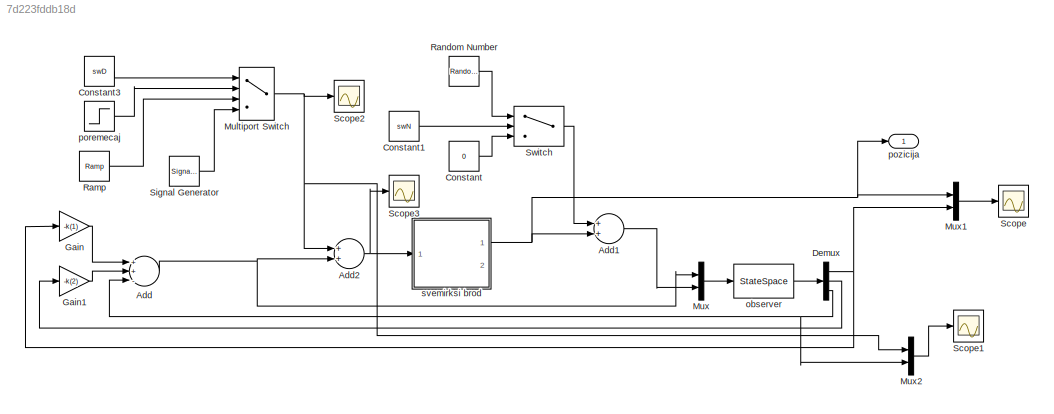
MODEL slx_7d223fddb18d
KIND model
CONFIG AbsTol = auto
CONFIG EnableMultiTasking = on
CONFIG FixedStep = 0.001
CONFIG MaxStep = auto
CONFIG MinStep = auto
CONFIG RelTol = 1e-3
CONFIG SampleTimeConstraint = Unconstrained
CONFIG Solver = VariableStepAuto
CONFIG SolverName = VariableStepAuto
CONFIG StartTime = 0.0
CONFIG StopTime = 30.0
BLOCK [Sum] Add
  InputSameDT = off
  Inputs = ++-
  OutDataTypeStr = Inherit: Inherit via internal rule
  Ports = [3, 1]
  SaturateOnIntegerOverflow = off
BLOCK [Sum] Add1
  InputSameDT = off
  OutDataTypeStr = Inherit: Inherit via internal rule
  Ports = [2, 1]
  SaturateOnIntegerOverflow = off
BLOCK [Sum] Add2
  InputSameDT = off
  OutDataTypeStr = Inherit: Inherit via internal rule
  Ports = [2, 1]
  SaturateOnIntegerOverflow = off
BLOCK [Constant] Constant
  Value = 0
BLOCK [Constant] Constant1
  Value = swN
BLOCK [Constant] Constant3
  Value = swD
BLOCK [Demux] Demux
  DisplayOption = bar
  Outputs = 3
  Ports = [1, 3]
BLOCK [Gain] Gain
  Gain = -k(1)
  OutDataTypeStr = Inherit: Inherit via internal rule
  ParamDataTypeStr = Inherit: Inherit via internal rule
  SaturateOnIntegerOverflow = off
BLOCK [Gain] Gain1
  Gain = -k(2)
  OutDataTypeStr = Inherit: Inherit via internal rule
  ParamDataTypeStr = Inherit: Inherit via internal rule
  SaturateOnIntegerOverflow = off
BLOCK [MultiPortSwitch] Multiport Switch
  InputSameDT = off
  Ports = [4, 1]
  SaturateOnIntegerOverflow = off
BLOCK [Mux] Mux
  DisplayOption = bar
  Inputs = 2
  Ports = [2, 1]
BLOCK [Mux] Mux1
  DisplayOption = bar
  Inputs = 2
  Ports = [2, 1]
BLOCK [Mux] Mux2
  DisplayOption = bar
  Inputs = 2
  Ports = [2, 1]
BLOCK [Reference] Ramp  REF=simulink/Sources/Ramp
  Ports = [0, 1]
  SourceBlock = simulink/Sources/Ramp
  SourceProductBaseCode = SL
  SourceProductName = Simulink
  SourceType = Ramp
BLOCK [RandomNumber] Random Number
  Variance = 0.01
BLOCK [Scope] Scope
  Floating = off
  NumInputPorts = 1
  Ports = [1]
  ScopeSpecificationString = Simulink.scopes.TimeScopeBlockCfg('CurrentConfiguration', extmgr.ConfigurationSet(extmgr.Configuration('Core','General UI',true),extmgr.Configuration('Core','Source UI',true),extmgr.Configuration('Sources','WiredSimulink',true),extmgr.Configuration('Visuals','Time Domain',true,'SerializedDisplays',{struct('MinYLimReal','-0.00025','MaxYLimReal','0.00037','YLabelReal','','MinYLimMag','0.00000','MaxY...<+1375ch>
BLOCK [Scope] Scope1
  Floating = off
  NumInputPorts = 1
  Ports = [1]
  ScopeSpecificationString = Simulink.scopes.TimeScopeBlockCfg('CurrentConfiguration', extmgr.ConfigurationSet(extmgr.Configuration('Core','General UI',true),extmgr.Configuration('Core','Source UI',true),extmgr.Configuration('Sources','WiredSimulink',true,'DataLoggingVariableName','ScopeData1'),extmgr.Configuration('Visuals','Time Domain',true,'SerializedDisplays',{struct('MinYLimReal','-2.51863','MaxYLimReal','2.51864','YLab...<+1414ch>
BLOCK [Scope] Scope2
  Floating = off
  NumInputPorts = 1
  Ports = [1]
  ScopeSpecificationString = Simulink.scopes.TimeScopeBlockCfg('CurrentConfiguration', extmgr.ConfigurationSet(extmgr.Configuration('Core','General UI',true),extmgr.Configuration('Core','Source UI',true),extmgr.Configuration('Sources','WiredSimulink',true,'DataLoggingVariableName','ScopeData2'),extmgr.Configuration('Visuals','Time Domain',true,'SerializedDisplays',{struct('MinYLimReal','-2.5','MaxYLimReal','2.5','YLabelReal',...<+1380ch>
BLOCK [Scope] Scope3
  Floating = off
  NumInputPorts = 1
  Ports = [1]
  ScopeSpecificationString = Simulink.scopes.TimeScopeBlockCfg('CurrentConfiguration', extmgr.ConfigurationSet(extmgr.Configuration('Core','General UI',true),extmgr.Configuration('Core','Source UI',true),extmgr.Configuration('Sources','WiredSimulink',true,'DataLoggingVariableName','ScopeData3'),extmgr.Configuration('Visuals','Time Domain',true,'SerializedDisplays',{struct('MinYLimReal','-0.04033','MaxYLimReal','0.0639','YLabe...<+1388ch>
BLOCK [SignalGenerator] Signal Generator
  Amplitude = 2
  Frequency = omega
  Ports = [0, 1]
  Units = rad/sec
BLOCK [Switch] Switch
  Criteria = u2 > Threshold
  InputSameDT = off
  SaturateOnIntegerOverflow = off
  Threshold = 0.5
BLOCK [StateSpace] observer
  A = Ao
  B = Bo
  C = Co
  D = Do
  InitialCondition = 0
  Ports = [1, 1]
BLOCK [Step] poremecaj
  After = 3
  SampleTime = 0
BLOCK [Outport] pozicija
  IconDisplay = Port number
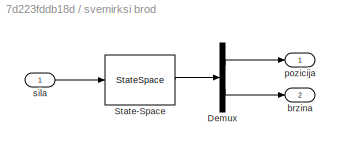
BLOCK [SubSystem] svemirksi brod
  Ports = [1, 2]
  RequestExecContextInheritance = off
BLOCK [Demux] svemirksi brod/Demux
  DisplayOption = bar
  Outputs = 2
  Ports = [1, 2]
BLOCK [StateSpace] svemirksi brod/State-Space
  A = [0 1;0 -b/m]
  B = [0;1/m]
  C = [1 0; 0 1]
  D = [0;0]
  InitialCondition = [0;0]
  Ports = [1, 1]
BLOCK [Outport] svemirksi brod/brzina
  IconDisplay = Port number
  Port = 2
BLOCK [Outport] svemirksi brod/pozicija
  IconDisplay = Port number
BLOCK [Inport] svemirksi brod/sila
  IconDisplay = Port number
LINE Add1:1 -> Mux:2
NET Add2:1 -> Scope3:1, svemirksi brod:1
NET Add:1 -> Add2:2, Mux:1
LINE Constant1:1 -> Switch:2
LINE Constant3:1 -> Multiport Switch:1
LINE Constant:1 -> Switch:3
NET Demux:1 -> Gain:1, Mux1:2
LINE Demux:2 -> Gain1:1
NET Demux:3 -> Add:3, Mux2:2
LINE Gain1:1 -> Add:2
LINE Gain:1 -> Add:1
NET Multiport Switch:1 -> Add2:1, Mux2:1, Scope2:1
LINE Mux1:1 -> Scope:1
LINE Mux2:1 -> Scope1:1
LINE Mux:1 -> observer:1
LINE Ramp:1 -> Multiport Switch:3
LINE Random Number:1 -> Switch:1
LINE Signal Generator:1 -> Multiport Switch:4
LINE Switch:1 -> Add1:1
LINE observer:1 -> Demux:1
LINE poremecaj:1 -> Multiport Switch:2
LINE svemirksi brod/Demux:1 -> svemirksi brod/pozicija:1
LINE svemirksi brod/Demux:2 -> svemirksi brod/brzina:1
LINE svemirksi brod/State-Space:1 -> svemirksi brod/Demux:1
LINE svemirksi brod/sila:1 -> svemirksi brod/State-Space:1
NET svemirksi brod:1 -> Add1:2, Mux1:1, pozicija:1
note: NET lines group one-source signal fan-out (src -> all destinations, sorted); 1:1 wires keep LINE
